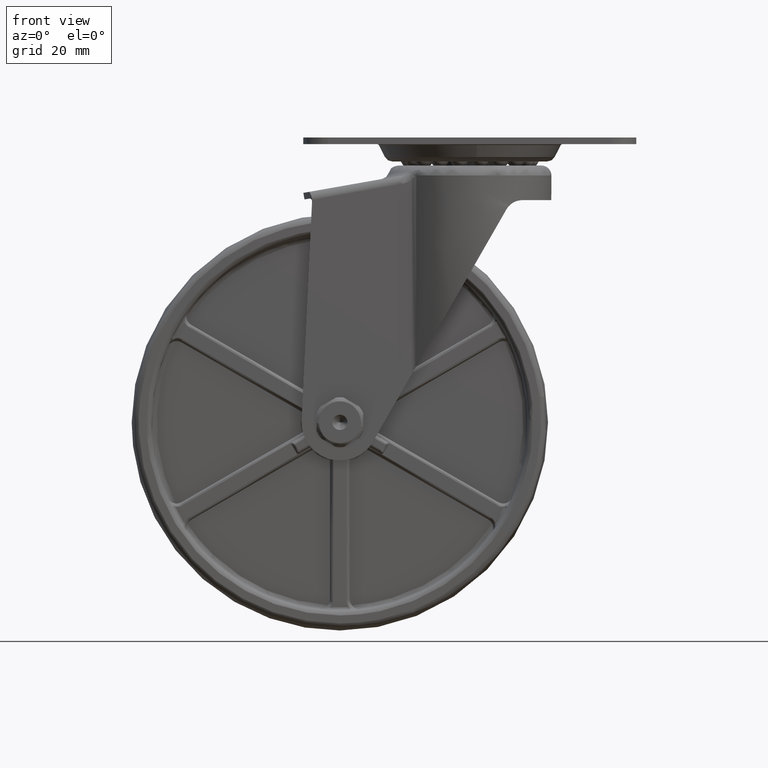
[diagram: clean part render]
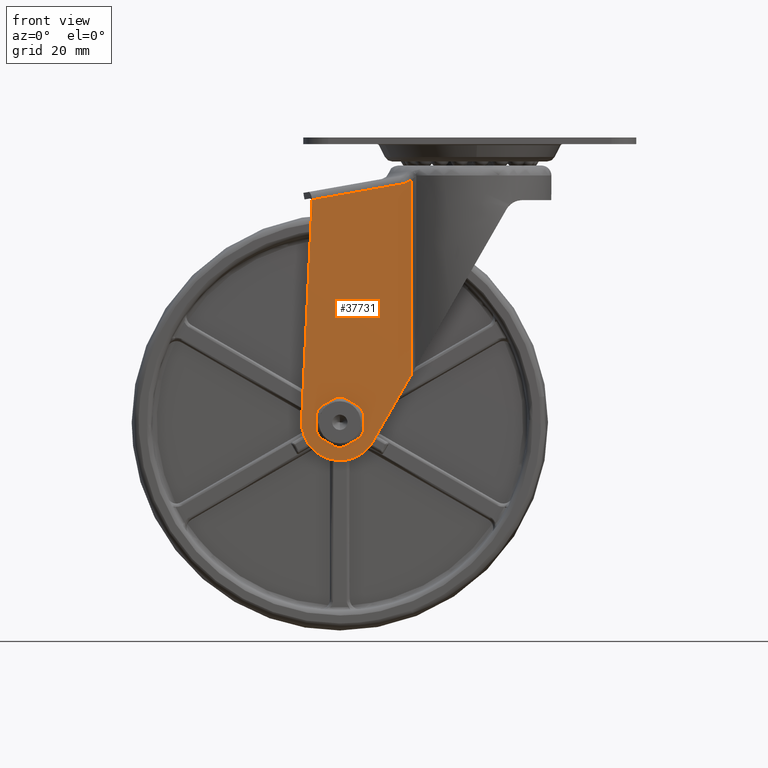
[diagram: same view with one face highlighted and labeled with its STEP entity id]
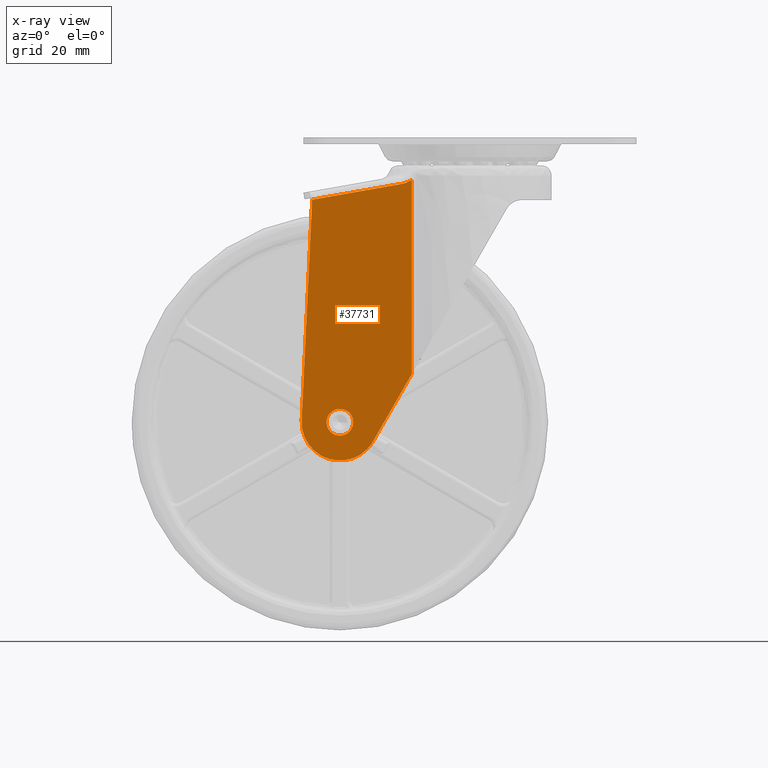
[diagram: x-ray of the same camera — body ghosted, the highlighted face saturated]
A machine part, front view. The second image highlights one B-rep face of the part: STEP entity #37731.
The next image is the same camera in x-ray: the body ghosted, the highlighted face saturated — about 0% of this face is hidden behind the body in this view.
In plain terms, the highlighted face is a freeform B-spline surface patch.
Its self-contained STEP definition (entity closure, byte-faithful):
#33340=CARTESIAN_POINT('',(-35.027961894551893,-18.0,-83.972136938682141));
#33341=VERTEX_POINT('',#33340);
#33347=CARTESIAN_POINT('',(-39.0,-18.0,-79.500000000000000));
#33348=VERTEX_POINT('',#33347);
#33349=CARTESIAN_POINT('',(-35.027961894551886,-17.999999999999996,-83.972136938682141));
#33350=CARTESIAN_POINT('',(-35.000000000000007,-18.000000000000004,-83.736896478663326));
#33351=CARTESIAN_POINT('',(-35.0,-18.0,-83.500000000000000));
#33352=CARTESIAN_POINT('',(-34.999999999999993,-18.000000000000007,-79.500000000000014));
#33353=CARTESIAN_POINT('',(-39.0,-18.0,-79.500000000000000));
#33361=(BOUNDED_CURVE()B_SPLINE_CURVE(2,(#33349,#33350,#33351,#33352,#33353),.UNSPECIFIED.,.F.,.U.)B_SPLINE_CURVE_WITH_KNOTS((3,2,3),(0.229562473510955,0.250000000000000,0.500000000000000),.UNSPECIFIED.)CURVE()GEOMETRIC_REPRESENTATION_ITEM()RATIONAL_B_SPLINE_CURVE((0.956026754178695,0.976055948328154,1.0,0.707106781186548,1.0))REPRESENTATION_ITEM(''));
#33362=EDGE_CURVE('',#33341,#33348,#33361,.T.);
#33364=CARTESIAN_POINT('',(-42.992539193649613,-18.0,-83.255805841241539));
#33365=VERTEX_POINT('',#33364);
#33366=CARTESIAN_POINT('',(-39.0,-18.0,-79.500000000000000));
#33367=CARTESIAN_POINT('',(-42.762824266453727,-17.999999999999996,-79.500000000000000));
#33368=CARTESIAN_POINT('',(-42.992539193649606,-18.000000000000004,-83.255805841241539));
#33376=(BOUNDED_CURVE()B_SPLINE_CURVE(2,(#33366,#33367,#33368),.UNSPECIFIED.,.F.,.U.)B_SPLINE_CURVE_WITH_KNOTS((3,3),(0.500000000000000,0.739332962188461),.UNSPECIFIED.)CURVE()GEOMETRIC_REPRESENTATION_ITEM()RATIONAL_B_SPLINE_CURVE((1.0,0.719603993345853,0.976072041558525))REPRESENTATION_ITEM(''));
#33377=EDGE_CURVE('',#33348,#33365,#33376,.T.);
#33451=CARTESIAN_POINT('',(-39.0,-18.0,-87.500000000000014));
#33452=VERTEX_POINT('',#33451);
#33453=CARTESIAN_POINT('',(-42.992539193649606,-18.000000000000004,-83.255805841241539));
#33454=CARTESIAN_POINT('',(-43.0,-17.999999999999996,-83.377788946184864));
#33455=CARTESIAN_POINT('',(-43.0,-18.0,-83.500000000000000));
#33456=CARTESIAN_POINT('',(-42.999999999999993,-18.000000000000007,-87.500000000000028));
#33457=CARTESIAN_POINT('',(-39.0,-18.0,-87.500000000000014));
#33465=(BOUNDED_CURVE()B_SPLINE_CURVE(2,(#33453,#33454,#33455,#33456,#33457),.UNSPECIFIED.,.F.,.U.)B_SPLINE_CURVE_WITH_KNOTS((3,2,3),(0.739332962188461,0.750000000000000,1.0),.UNSPECIFIED.)CURVE()GEOMETRIC_REPRESENTATION_ITEM()RATIONAL_B_SPLINE_CURVE((0.976072041558526,0.987502787840695,1.0,0.707106781186548,1.0))REPRESENTATION_ITEM(''));
#33466=EDGE_CURVE('',#33365,#33452,#33465,.T.);
#33468=CARTESIAN_POINT('',(-39.0,-18.0,-87.500000000000014));
#33469=CARTESIAN_POINT('',(-35.447301896293794,-18.000000000000004,-87.500000000000014));
#33470=CARTESIAN_POINT('',(-35.027961894551886,-18.000000000000004,-83.972136938682141));
#33478=(BOUNDED_CURVE()B_SPLINE_CURVE(2,(#33468,#33469,#33470),.UNSPECIFIED.,.F.,.U.)B_SPLINE_CURVE_WITH_KNOTS((3,3),(0.0,0.229562473510955),.UNSPECIFIED.)CURVE()GEOMETRIC_REPRESENTATION_ITEM()RATIONAL_B_SPLINE_CURVE((1.0,0.731050832858394,0.956026754178695))REPRESENTATION_ITEM(''));
#33479=EDGE_CURVE('',#33452,#33341,#33478,.T.);
#35390=CARTESIAN_POINT('',(-17.385338650713699,-18.0,-10.731464382610120));
#35391=VERTEX_POINT('',#35390);
#35483=CARTESIAN_POINT('',(-20.595461981799801,-18.0,-11.979562999337301));
#35484=VERTEX_POINT('',#35483);
#35498=CARTESIAN_POINT('',(-17.385338650713699,-18.0,-10.731464382610120));
#35499=CARTESIAN_POINT('',(-17.508574236667879,-18.0,-10.808849936441380));
#35500=CARTESIAN_POINT('',(-17.633579930202281,-18.0,-10.883248179351870));
#35501=CARTESIAN_POINT('',(-17.887096326662579,-18.0,-11.026129458125631));
#35502=CARTESIAN_POINT('',(-18.015217548766461,-18.0,-11.094387312807459));
#35503=CARTESIAN_POINT('',(-18.402788452633189,-18.0,-11.289376368172450));
#35504=CARTESIAN_POINT('',(-18.665772065658949,-18.0,-11.406554119449311));
#35505=CARTESIAN_POINT('',(-19.200896641704659,-18.000000000000011,-11.615415219004181));
#35506=CARTESIAN_POINT('',(-19.473037990649988,-18.0,-11.707097492851540));
#35507=CARTESIAN_POINT('',(-20.026871605233630,-18.0,-11.863871933218981));
#35508=CARTESIAN_POINT('',(-20.308560136630589,-18.0,-11.928974496005820));
#35509=CARTESIAN_POINT('',(-20.595461981799801,-18.0,-11.979562999337301));
#35510=B_SPLINE_CURVE_WITH_KNOTS('',3,(#35498,#35499,#35500,#35501,#35502,#35503,#35504,#35505,#35506,#35507,#35508,#35509),.UNSPECIFIED.,.F.,.U.,(4,2,2,2,2,4),(0.0,0.125000000000000,0.250000000000000,0.500000000000000,0.750000000000000,1.0),.UNSPECIFIED.);
#35511=EDGE_CURVE('',#35391,#35484,#35510,.T.);
#35626=CARTESIAN_POINT('',(-47.324437871731007,-18.0,-16.692599560874150));
#35627=VERTEX_POINT('',#35626);
#35635=CARTESIAN_POINT('',(-20.595461981799801,-18.0,-11.979562999337301));
#35636=CARTESIAN_POINT('',(-47.324437871731007,-18.0,-16.692599560874150));
#35637=QUASI_UNIFORM_CURVE('',1,(#35635,#35636),.UNSPECIFIED.,.F.,.U.);
#35638=EDGE_CURVE('',#35484,#35627,#35637,.T.);
#36649=CARTESIAN_POINT('',(-17.385338650713699,-18.0,-68.974435464691908));
#36650=VERTEX_POINT('',#36649);
#36651=CARTESIAN_POINT('',(-17.385338650713699,-18.0,-68.974435464691908));
#36652=CARTESIAN_POINT('',(-17.385338650713699,-18.0,-10.731464382610120));
#36653=QUASI_UNIFORM_CURVE('',1,(#36651,#36652),.UNSPECIFIED.,.F.,.U.);
#36654=EDGE_CURVE('',#36650,#35391,#36653,.T.);
#37174=CARTESIAN_POINT('',(-50.486919999999998,-18.0,-82.951737399999885));
#37175=VERTEX_POINT('',#37174);
#37198=CARTESIAN_POINT('',(-29.029918070220400,-18.0,-89.231270916077904));
#37199=VERTEX_POINT('',#37198);
#37205=CARTESIAN_POINT('',(-50.486919999999998,-18.0,-82.951737399999885));
#37206=CARTESIAN_POINT('',(-50.918516709295830,-18.000000000000004,-91.994326133654425));
#37207=CARTESIAN_POINT('',(-42.230066092213242,-18.0,-94.537058665967677));
#37208=CARTESIAN_POINT('',(-33.541615475130641,-18.000000000000004,-97.079791198280944));
#37209=CARTESIAN_POINT('',(-29.029918070220400,-18.0,-89.231270916077904));
#37217=(BOUNDED_CURVE()B_SPLINE_CURVE(2,(#37205,#37206,#37207,#37208,#37209),.UNSPECIFIED.,.F.,.U.)B_SPLINE_CURVE_WITH_KNOTS((3,2,3),(0.0,0.500000000000000,1.0),.UNSPECIFIED.)CURVE()GEOMETRIC_REPRESENTATION_ITEM()RATIONAL_B_SPLINE_CURVE((1.0,0.785748129695396,1.0,0.785748129695396,1.0))REPRESENTATION_ITEM(''));
#37218=EDGE_CURVE('',#37175,#37199,#37217,.T.);
#37314=CARTESIAN_POINT('',(-47.324437871731007,-18.0,-16.692599560874150));
#37315=CARTESIAN_POINT('',(-50.486919999999998,-18.0,-82.951737399999885));
#37316=QUASI_UNIFORM_CURVE('',1,(#37314,#37315),.UNSPECIFIED.,.F.,.U.);
#37317=EDGE_CURVE('',#35627,#37175,#37316,.T.);
#37638=CARTESIAN_POINT('',(-17.385338650713699,-18.0,-68.974435464691908));
#37639=CARTESIAN_POINT('',(-29.029918070220400,-18.0,-89.231270916077904));
#37640=QUASI_UNIFORM_CURVE('',1,(#37638,#37639),.UNSPECIFIED.,.F.,.U.);
#37641=EDGE_CURVE('',#36650,#37199,#37640,.T.);
#37712=CARTESIAN_POINT('',(-52.143816065532043,-18.0,-99.207267019987469));
#37713=CARTESIAN_POINT('',(-15.731748656033220,-18.0,-99.207267019987469));
#37714=CARTESIAN_POINT('',(-52.143816065532043,-18.0,-6.522341518171098));
#37715=CARTESIAN_POINT('',(-15.731748656033220,-18.0,-6.522341518171098));
#37716=B_SPLINE_SURFACE_WITH_KNOTS('',1,1,((#37712,#37714),(#37713,#37715)),.UNSPECIFIED.,.F.,.F.,.U.,(2,2),(2,2),(0.0,36.412067409498832),(0.0,92.684925501816366),.UNSPECIFIED.);
#37717=ORIENTED_EDGE('',*,*,#36654,.T.);
#37718=ORIENTED_EDGE('',*,*,#35511,.T.);
#37719=ORIENTED_EDGE('',*,*,#35638,.T.);
#37720=ORIENTED_EDGE('',*,*,#37317,.T.);
#37721=ORIENTED_EDGE('',*,*,#37218,.T.);
#37722=ORIENTED_EDGE('',*,*,#37641,.F.);
#37723=EDGE_LOOP('',(#37717,#37718,#37719,#37720,#37721,#37722));
#37724=FACE_OUTER_BOUND('',#37723,.T.);
#37725=ORIENTED_EDGE('',*,*,#33377,.F.);
#37726=ORIENTED_EDGE('',*,*,#33362,.F.);
#37727=ORIENTED_EDGE('',*,*,#33479,.F.);
#37728=ORIENTED_EDGE('',*,*,#33466,.F.);
#37729=EDGE_LOOP('',(#37725,#37726,#37727,#37728));
#37730=FACE_BOUND('',#37729,.T.);
#37731=ADVANCED_FACE('',(#37724,#37730),#37716,.T.);